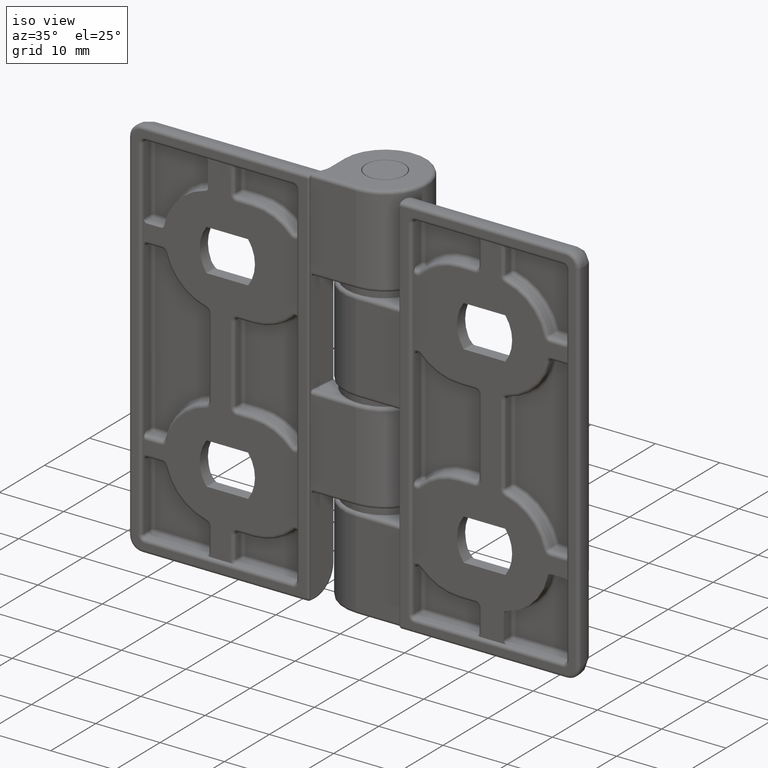
[diagram: clean part render]
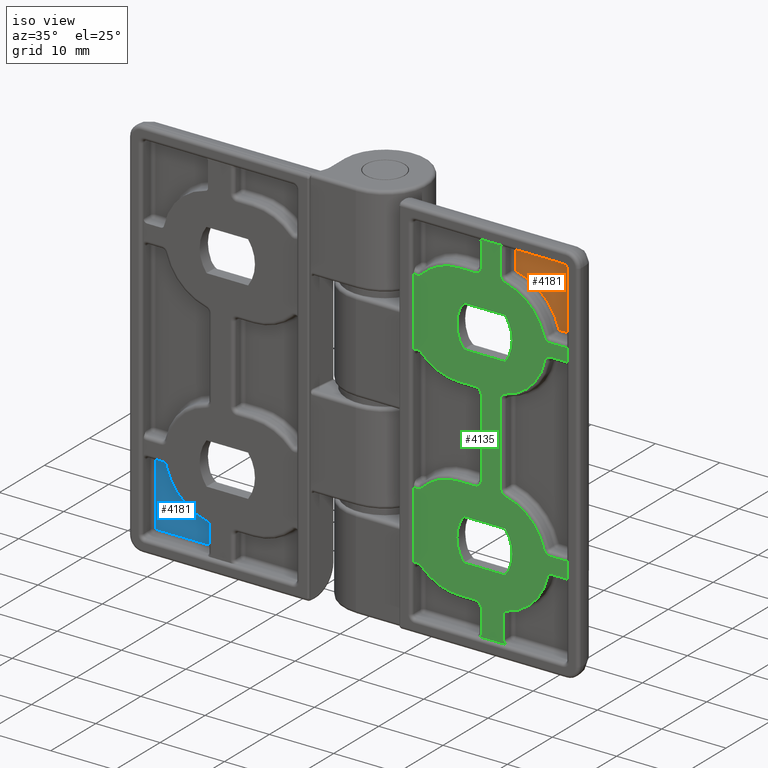
[diagram: same view with three faces highlighted in distinct colors, each labeled with its STEP entity id]
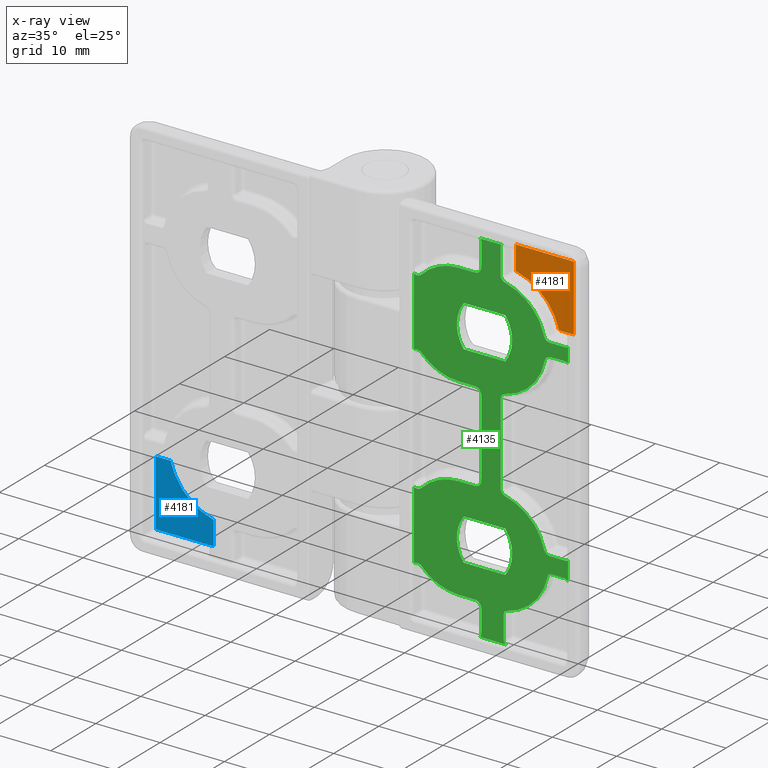
[diagram: x-ray of the same camera — body ghosted, the three highlighted faces saturated]
A machine part, iso view with three faces highlighted in distinct colors.
The next image is the same camera in x-ray (body ghosted, the three faces saturated) — at least one of them is partly hidden behind the body in this view.
Their STEP definitions:

[orange] entity #4181 — the highlighted planar face has unit normal (0, -1, 0).
#180=PLANE('',#4621);
#369=LINE('',#7361,#627);
#370=LINE('',#7363,#628);
#371=LINE('',#7365,#629);
#372=LINE('',#7367,#630);
#627=VECTOR('',#5644,2.28578747103);
#628=VECTOR('',#5645,10.25);
#629=VECTOR('',#5646,9.);
#630=VECTOR('',#5647,3.72503561261);
#951=FACE_OUTER_BOUND('',#1252,.T.);
#1252=EDGE_LOOP('',(#3269,#3270,#3271,#3272,#3273));
#1596=CIRCLE('',#4622,9.);
#2014=VERTEX_POINT('',#7359);
#2015=VERTEX_POINT('',#7360);
#2016=VERTEX_POINT('',#7362);
#2017=VERTEX_POINT('',#7364);
#2018=VERTEX_POINT('',#7366);
#2458=EDGE_CURVE('',#2014,#2015,#369,.T.);
#2459=EDGE_CURVE('',#2016,#2014,#370,.T.);
#2460=EDGE_CURVE('',#2017,#2016,#371,.T.);
#2461=EDGE_CURVE('',#2018,#2017,#372,.T.);
#2462=EDGE_CURVE('',#2015,#2018,#1596,.T.);
#3269=ORIENTED_EDGE('',*,*,#2458,.F.);
#3270=ORIENTED_EDGE('',*,*,#2459,.F.);
#3271=ORIENTED_EDGE('',*,*,#2460,.F.);
#3272=ORIENTED_EDGE('',*,*,#2461,.F.);
#3273=ORIENTED_EDGE('',*,*,#2462,.F.);
#4181=ADVANCED_FACE('',(#951),#180,.T.);
#4621=AXIS2_PLACEMENT_3D('',#7358,#5642,#5643);
#4622=AXIS2_PLACEMENT_3D('',#7368,#5648,#5649);
#5642=DIRECTION('center_axis',(0.,0.,1.));
#5643=DIRECTION('ref_axis',(1.,0.,0.));
#5644=DIRECTION('',(-1.,0.,0.));
#5645=DIRECTION('',(0.,-1.,0.));
#5646=DIRECTION('',(1.,0.,0.));
#5647=DIRECTION('',(0.,1.,0.));
#5648=DIRECTION('center_axis',(0.,0.,1.));
#5649=DIRECTION('ref_axis',(0.968245836551857,0.249999999999989,0.));
#7358=CARTESIAN_POINT('Origin',(0.,-30.,4.5));
#7359=CARTESIAN_POINT('',(32.5,17.25,4.5));
#7360=CARTESIAN_POINT('',(30.21421252897,17.25,4.5));
#7361=CARTESIAN_POINT('',(32.5,17.25,4.5));
#7362=CARTESIAN_POINT('',(32.5,27.5,4.5));
#7363=CARTESIAN_POINT('',(32.5,27.5,4.5));
#7364=CARTESIAN_POINT('',(23.5,27.5,4.5));
#7365=CARTESIAN_POINT('',(23.5,27.5,4.5));
#7366=CARTESIAN_POINT('',(23.5,23.77496438739,4.5));
#7367=CARTESIAN_POINT('',(23.5,23.77496438739,4.5));
#7368=CARTESIAN_POINT('Origin',(21.5,15.,4.5));

[blue] entity #4181 — the highlighted planar face has unit normal (-0, -1, 0).
#180=PLANE('',#4621);
#369=LINE('',#7361,#627);
#370=LINE('',#7363,#628);
#371=LINE('',#7365,#629);
#372=LINE('',#7367,#630);
#627=VECTOR('',#5644,2.28578747103);
#628=VECTOR('',#5645,10.25);
#629=VECTOR('',#5646,9.);
#630=VECTOR('',#5647,3.72503561261);
#951=FACE_OUTER_BOUND('',#1252,.T.);
#1252=EDGE_LOOP('',(#3269,#3270,#3271,#3272,#3273));
#1596=CIRCLE('',#4622,9.);
#2014=VERTEX_POINT('',#7359);
#2015=VERTEX_POINT('',#7360);
#2016=VERTEX_POINT('',#7362);
#2017=VERTEX_POINT('',#7364);
#2018=VERTEX_POINT('',#7366);
#2458=EDGE_CURVE('',#2014,#2015,#369,.T.);
#2459=EDGE_CURVE('',#2016,#2014,#370,.T.);
#2460=EDGE_CURVE('',#2017,#2016,#371,.T.);
#2461=EDGE_CURVE('',#2018,#2017,#372,.T.);
#2462=EDGE_CURVE('',#2015,#2018,#1596,.T.);
#3269=ORIENTED_EDGE('',*,*,#2458,.F.);
#3270=ORIENTED_EDGE('',*,*,#2459,.F.);
#3271=ORIENTED_EDGE('',*,*,#2460,.F.);
#3272=ORIENTED_EDGE('',*,*,#2461,.F.);
#3273=ORIENTED_EDGE('',*,*,#2462,.F.);
#4181=ADVANCED_FACE('',(#951),#180,.T.);
#4621=AXIS2_PLACEMENT_3D('',#7358,#5642,#5643);
#4622=AXIS2_PLACEMENT_3D('',#7368,#5648,#5649);
#5642=DIRECTION('center_axis',(0.,0.,1.));
#5643=DIRECTION('ref_axis',(1.,0.,0.));
#5644=DIRECTION('',(-1.,0.,0.));
#5645=DIRECTION('',(0.,-1.,0.));
#5646=DIRECTION('',(1.,0.,0.));
#5647=DIRECTION('',(0.,1.,0.));
#5648=DIRECTION('center_axis',(0.,0.,1.));
#5649=DIRECTION('ref_axis',(0.968245836551857,0.249999999999989,0.));
#7358=CARTESIAN_POINT('Origin',(0.,-30.,4.5));
#7359=CARTESIAN_POINT('',(32.5,17.25,4.5));
#7360=CARTESIAN_POINT('',(30.21421252897,17.25,4.5));
#7361=CARTESIAN_POINT('',(32.5,17.25,4.5));
#7362=CARTESIAN_POINT('',(32.5,27.5,4.5));
#7363=CARTESIAN_POINT('',(32.5,27.5,4.5));
#7364=CARTESIAN_POINT('',(23.5,27.5,4.5));
#7365=CARTESIAN_POINT('',(23.5,27.5,4.5));
#7366=CARTESIAN_POINT('',(23.5,23.77496438739,4.5));
#7367=CARTESIAN_POINT('',(23.5,23.77496438739,4.5));
#7368=CARTESIAN_POINT('Origin',(21.5,15.,4.5));

[green] entity #4135 — the highlighted planar face has unit normal (0, -1, 0).
#140=FACE_BOUND('',#1204,.T.);
#141=FACE_BOUND('',#1205,.T.);
#164=PLANE('',#4489);
#253=LINE('',#6761,#511);
#254=LINE('',#6763,#512);
#261=LINE('',#6845,#519);
#262=LINE('',#6847,#520);
#277=LINE('',#6958,#535);
#278=LINE('',#6962,#536);
#279=LINE('',#6966,#537);
#280=LINE('',#6970,#538);
#281=LINE('',#6978,#539);
#282=LINE('',#6982,#540);
#283=LINE('',#6986,#541);
#284=LINE('',#6994,#542);
#285=LINE('',#7002,#543);
#286=LINE('',#7006,#544);
#287=LINE('',#7010,#545);
#288=LINE('',#7018,#546);
#289=LINE('',#7022,#547);
#290=LINE('',#7026,#548);
#291=LINE('',#7030,#549);
#292=LINE('',#7036,#550);
#293=LINE('',#7042,#551);
#294=LINE('',#7046,#552);
#295=LINE('',#7050,#553);
#296=LINE('',#7055,#554);
#511=VECTOR('',#5184,6.47411967464942);
#512=VECTOR('',#5187,6.47411967464942);
#519=VECTOR('',#5216,6.47411967464942);
#520=VECTOR('',#5219,6.47411967464942);
#535=VECTOR('',#5292,2.50000000084446);
#536=VECTOR('',#5295,3.50000000129187);
#537=VECTOR('',#5298,4.13397459622);
#538=VECTOR('',#5301,3.72503561261);
#539=VECTOR('',#5308,2.1717782085);
#540=VECTOR('',#5311,3.13397459688);
#541=VECTOR('',#5314,2.28578747203446);
#542=VECTOR('',#5321,12.4500712263508);
#543=VECTOR('',#5328,2.17177820982146);
#544=VECTOR('',#5331,2.2679491927);
#545=VECTOR('',#5334,2.28578747203446);
#546=VECTOR('',#5341,3.72503561379666);
#547=VECTOR('',#5344,3.26794919244);
#548=VECTOR('',#5347,3.50000000116887);
#549=VECTOR('',#5350,2.5);
#550=VECTOR('',#5355,10.71784879042);
#551=VECTOR('',#5360,2.50000000084446);
#552=VECTOR('',#5363,12.0000000011707);
#553=VECTOR('',#5366,2.5);
#554=VECTOR('',#5371,10.71784879042);
#905=FACE_OUTER_BOUND('',#1203,.T.);
#1203=EDGE_LOOP('',(#3002,#3003,#3004,#3005,#3006,#3007,#3008,#3009,#3010,
#3011,#3012,#3013,#3014,#3015,#3016,#3017,#3018,#3019,#3020,#3021,#3022,
#3023,#3024,#3025,#3026,#3027,#3028,#3029,#3030,#3031,#3032,#3033,#3034,
#3035,#3036,#3037,#3038,#3039,#3040,#3041,#3042,#3043,#3044,#3045,#3046,
#3047,#3048,#3049,#3050,#3051,#3052,#3053));
#1204=EDGE_LOOP('',(#3054,#3055,#3056,#3057));
#1205=EDGE_LOOP('',(#3058,#3059,#3060,#3061));
#1486=CIRCLE('',#4442,5.5);
#1488=CIRCLE('',#4446,5.5);
#1490=CIRCLE('',#4454,5.5);
#1492=CIRCLE('',#4459,5.5);
#1510=CIRCLE('',#4490,1.);
#1511=CIRCLE('',#4491,8.);
#1512=CIRCLE('',#4492,1.);
#1513=CIRCLE('',#4493,1.);
#1514=CIRCLE('',#4494,0.5);
#1515=CIRCLE('',#4495,0.5);
#1516=CIRCLE('',#4496,8.5);
#1517=CIRCLE('',#4497,0.5);
#1518=CIRCLE('',#4498,0.5);
#1519=CIRCLE('',#4499,1.);
#1520=CIRCLE('',#4500,1.);
#1521=CIRCLE('',#4501,8.);
#1522=CIRCLE('',#4502,1.);
#1523=CIRCLE('',#4503,1.);
#1524=CIRCLE('',#4504,8.);
#1525=CIRCLE('',#4505,1.);
#1526=CIRCLE('',#4506,1.);
#1527=CIRCLE('',#4507,1.);
#1528=CIRCLE('',#4508,1.);
#1529=CIRCLE('',#4509,8.);
#1530=CIRCLE('',#4510,1.);
#1531=CIRCLE('',#4511,1.);
#1532=CIRCLE('',#4512,1.);
#1533=CIRCLE('',#4513,1.);
#1534=CIRCLE('',#4514,8.);
#1535=CIRCLE('',#4515,1.);
#1536=CIRCLE('',#4516,1.);
#1537=CIRCLE('',#4517,8.);
#1538=CIRCLE('',#4518,1.);
#1539=CIRCLE('',#4519,1.);
#1540=CIRCLE('',#4520,8.);
#1541=CIRCLE('',#4521,1.);
#1832=VERTEX_POINT('',#6709);
#1833=VERTEX_POINT('',#6711);
#1836=VERTEX_POINT('',#6751);
#1837=VERTEX_POINT('',#6753);
#1840=VERTEX_POINT('',#6797);
#1841=VERTEX_POINT('',#6799);
#1844=VERTEX_POINT('',#6837);
#1845=VERTEX_POINT('',#6839);
#1873=VERTEX_POINT('',#6952);
#1874=VERTEX_POINT('',#6953);
#1875=VERTEX_POINT('',#6955);
#1876=VERTEX_POINT('',#6957);
#1877=VERTEX_POINT('',#6959);
#1878=VERTEX_POINT('',#6961);
#1879=VERTEX_POINT('',#6963);
#1880=VERTEX_POINT('',#6965);
#1881=VERTEX_POINT('',#6967);
#1882=VERTEX_POINT('',#6969);
#1883=VERTEX_POINT('',#6971);
#1884=VERTEX_POINT('',#6973);
#1885=VERTEX_POINT('',#6975);
#1886=VERTEX_POINT('',#6977);
#1887=VERTEX_POINT('',#6979);
#1888=VERTEX_POINT('',#6981);
#1889=VERTEX_POINT('',#6983);
#1890=VERTEX_POINT('',#6985);
#1891=VERTEX_POINT('',#6987);
#1892=VERTEX_POINT('',#6989);
#1893=VERTEX_POINT('',#6991);
#1894=VERTEX_POINT('',#6993);
#1895=VERTEX_POINT('',#6995);
#1896=VERTEX_POINT('',#6997);
#1897=VERTEX_POINT('',#6999);
#1898=VERTEX_POINT('',#7001);
#1899=VERTEX_POINT('',#7003);
#1900=VERTEX_POINT('',#7005);
#1901=VERTEX_POINT('',#7007);
#1902=VERTEX_POINT('',#7009);
#1903=VERTEX_POINT('',#7011);
#1904=VERTEX_POINT('',#7013);
#1905=VERTEX_POINT('',#7015);
#1906=VERTEX_POINT('',#7017);
#1907=VERTEX_POINT('',#7019);
#1908=VERTEX_POINT('',#7021);
#1909=VERTEX_POINT('',#7023);
#1910=VERTEX_POINT('',#7025);
#1911=VERTEX_POINT('',#7027);
#1912=VERTEX_POINT('',#7029);
#1913=VERTEX_POINT('',#7031);
#1914=VERTEX_POINT('',#7033);
#1915=VERTEX_POINT('',#7035);
#1916=VERTEX_POINT('',#7037);
#1917=VERTEX_POINT('',#7039);
#1918=VERTEX_POINT('',#7041);
#1919=VERTEX_POINT('',#7043);
#1920=VERTEX_POINT('',#7045);
#1921=VERTEX_POINT('',#7047);
#1922=VERTEX_POINT('',#7049);
#1923=VERTEX_POINT('',#7051);
#1924=VERTEX_POINT('',#7053);
#2213=EDGE_CURVE('',#1833,#1832,#1486,.T.);
#2219=EDGE_CURVE('',#1837,#1836,#1488,.T.);
#2223=EDGE_CURVE('',#1832,#1837,#253,.T.);
#2224=EDGE_CURVE('',#1836,#1833,#254,.T.);
#2229=EDGE_CURVE('',#1841,#1840,#1490,.T.);
#2236=EDGE_CURVE('',#1845,#1844,#1492,.T.);
#2239=EDGE_CURVE('',#1844,#1841,#261,.T.);
#2240=EDGE_CURVE('',#1840,#1845,#262,.T.);
#2273=EDGE_CURVE('',#1873,#1874,#1510,.T.);
#2274=EDGE_CURVE('',#1875,#1873,#1511,.T.);
#2275=EDGE_CURVE('',#1876,#1875,#277,.T.);
#2276=EDGE_CURVE('',#1877,#1876,#1512,.T.);
#2277=EDGE_CURVE('',#1878,#1877,#278,.T.);
#2278=EDGE_CURVE('',#1879,#1878,#1513,.T.);
#2279=EDGE_CURVE('',#1880,#1879,#279,.T.);
#2280=EDGE_CURVE('',#1880,#1881,#1514,.T.);
#2281=EDGE_CURVE('',#1881,#1882,#280,.T.);
#2282=EDGE_CURVE('',#1882,#1883,#1515,.T.);
#2283=EDGE_CURVE('',#1883,#1884,#1516,.T.);
#2284=EDGE_CURVE('',#1884,#1885,#1517,.T.);
#2285=EDGE_CURVE('',#1885,#1886,#281,.T.);
#2286=EDGE_CURVE('',#1886,#1887,#1518,.T.);
#2287=EDGE_CURVE('',#1888,#1887,#282,.T.);
#2288=EDGE_CURVE('',#1889,#1888,#1519,.T.);
#2289=EDGE_CURVE('',#1890,#1889,#283,.T.);
#2290=EDGE_CURVE('',#1891,#1890,#1520,.T.);
#2291=EDGE_CURVE('',#1892,#1891,#1521,.T.);
#2292=EDGE_CURVE('',#1893,#1892,#1522,.T.);
#2293=EDGE_CURVE('',#1894,#1893,#284,.T.);
#2294=EDGE_CURVE('',#1895,#1894,#1523,.T.);
#2295=EDGE_CURVE('',#1896,#1895,#1524,.T.);
#2296=EDGE_CURVE('',#1897,#1896,#1525,.T.);
#2297=EDGE_CURVE('',#1898,#1897,#285,.T.);
#2298=EDGE_CURVE('',#1899,#1898,#1526,.T.);
#2299=EDGE_CURVE('',#1900,#1899,#286,.T.);
#2300=EDGE_CURVE('',#1901,#1900,#1527,.T.);
#2301=EDGE_CURVE('',#1902,#1901,#287,.T.);
#2302=EDGE_CURVE('',#1903,#1902,#1528,.T.);
#2303=EDGE_CURVE('',#1904,#1903,#1529,.T.);
#2304=EDGE_CURVE('',#1905,#1904,#1530,.T.);
#2305=EDGE_CURVE('',#1906,#1905,#288,.T.);
#2306=EDGE_CURVE('',#1907,#1906,#1531,.T.);
#2307=EDGE_CURVE('',#1908,#1907,#289,.T.);
#2308=EDGE_CURVE('',#1909,#1908,#1532,.T.);
#2309=EDGE_CURVE('',#1910,#1909,#290,.T.);
#2310=EDGE_CURVE('',#1911,#1910,#1533,.T.);
#2311=EDGE_CURVE('',#1912,#1911,#291,.T.);
#2312=EDGE_CURVE('',#1913,#1912,#1534,.T.);
#2313=EDGE_CURVE('',#1914,#1913,#1535,.T.);
#2314=EDGE_CURVE('',#1915,#1914,#292,.T.);
#2315=EDGE_CURVE('',#1916,#1915,#1536,.T.);
#2316=EDGE_CURVE('',#1917,#1916,#1537,.T.);
#2317=EDGE_CURVE('',#1918,#1917,#293,.T.);
#2318=EDGE_CURVE('',#1919,#1918,#1538,.T.);
#2319=EDGE_CURVE('',#1920,#1919,#294,.T.);
#2320=EDGE_CURVE('',#1921,#1920,#1539,.T.);
#2321=EDGE_CURVE('',#1922,#1921,#295,.T.);
#2322=EDGE_CURVE('',#1923,#1922,#1540,.T.);
#2323=EDGE_CURVE('',#1924,#1923,#1541,.T.);
#2324=EDGE_CURVE('',#1874,#1924,#296,.T.);
#3002=ORIENTED_EDGE('',*,*,#2273,.F.);
#3003=ORIENTED_EDGE('',*,*,#2274,.F.);
#3004=ORIENTED_EDGE('',*,*,#2275,.F.);
#3005=ORIENTED_EDGE('',*,*,#2276,.F.);
#3006=ORIENTED_EDGE('',*,*,#2277,.F.);
#3007=ORIENTED_EDGE('',*,*,#2278,.F.);
#3008=ORIENTED_EDGE('',*,*,#2279,.F.);
#3009=ORIENTED_EDGE('',*,*,#2280,.T.);
#3010=ORIENTED_EDGE('',*,*,#2281,.T.);
#3011=ORIENTED_EDGE('',*,*,#2282,.T.);
#3012=ORIENTED_EDGE('',*,*,#2283,.T.);
#3013=ORIENTED_EDGE('',*,*,#2284,.T.);
#3014=ORIENTED_EDGE('',*,*,#2285,.T.);
#3015=ORIENTED_EDGE('',*,*,#2286,.T.);
#3016=ORIENTED_EDGE('',*,*,#2287,.F.);
#3017=ORIENTED_EDGE('',*,*,#2288,.F.);
#3018=ORIENTED_EDGE('',*,*,#2289,.F.);
#3019=ORIENTED_EDGE('',*,*,#2290,.F.);
#3020=ORIENTED_EDGE('',*,*,#2291,.F.);
#3021=ORIENTED_EDGE('',*,*,#2292,.F.);
#3022=ORIENTED_EDGE('',*,*,#2293,.F.);
#3023=ORIENTED_EDGE('',*,*,#2294,.F.);
#3024=ORIENTED_EDGE('',*,*,#2295,.F.);
#3025=ORIENTED_EDGE('',*,*,#2296,.F.);
#3026=ORIENTED_EDGE('',*,*,#2297,.F.);
#3027=ORIENTED_EDGE('',*,*,#2298,.F.);
#3028=ORIENTED_EDGE('',*,*,#2299,.F.);
#3029=ORIENTED_EDGE('',*,*,#2300,.F.);
#3030=ORIENTED_EDGE('',*,*,#2301,.F.);
#3031=ORIENTED_EDGE('',*,*,#2302,.F.);
#3032=ORIENTED_EDGE('',*,*,#2303,.F.);
#3033=ORIENTED_EDGE('',*,*,#2304,.F.);
#3034=ORIENTED_EDGE('',*,*,#2305,.F.);
#3035=ORIENTED_EDGE('',*,*,#2306,.F.);
#3036=ORIENTED_EDGE('',*,*,#2307,.F.);
#3037=ORIENTED_EDGE('',*,*,#2308,.F.);
#3038=ORIENTED_EDGE('',*,*,#2309,.F.);
#3039=ORIENTED_EDGE('',*,*,#2310,.F.);
#3040=ORIENTED_EDGE('',*,*,#2311,.F.);
#3041=ORIENTED_EDGE('',*,*,#2312,.F.);
#3042=ORIENTED_EDGE('',*,*,#2313,.F.);
#3043=ORIENTED_EDGE('',*,*,#2314,.F.);
#3044=ORIENTED_EDGE('',*,*,#2315,.F.);
#3045=ORIENTED_EDGE('',*,*,#2316,.F.);
#3046=ORIENTED_EDGE('',*,*,#2317,.F.);
#3047=ORIENTED_EDGE('',*,*,#2318,.F.);
#3048=ORIENTED_EDGE('',*,*,#2319,.F.);
#3049=ORIENTED_EDGE('',*,*,#2320,.F.);
#3050=ORIENTED_EDGE('',*,*,#2321,.F.);
#3051=ORIENTED_EDGE('',*,*,#2322,.F.);
#3052=ORIENTED_EDGE('',*,*,#2323,.F.);
#3053=ORIENTED_EDGE('',*,*,#2324,.F.);
#3054=ORIENTED_EDGE('',*,*,#2224,.T.);
#3055=ORIENTED_EDGE('',*,*,#2213,.T.);
#3056=ORIENTED_EDGE('',*,*,#2223,.T.);
#3057=ORIENTED_EDGE('',*,*,#2219,.T.);
#3058=ORIENTED_EDGE('',*,*,#2239,.T.);
#3059=ORIENTED_EDGE('',*,*,#2229,.T.);
#3060=ORIENTED_EDGE('',*,*,#2240,.T.);
#3061=ORIENTED_EDGE('',*,*,#2236,.T.);
#4135=ADVANCED_FACE('',(#905,#140,#141),#164,.T.);
#4442=AXIS2_PLACEMENT_3D('',#6712,#5163,#5164);
#4446=AXIS2_PLACEMENT_3D('',#6754,#5173,#5174);
#4454=AXIS2_PLACEMENT_3D('',#6800,#5195,#5196);
#4459=AXIS2_PLACEMENT_3D('',#6840,#5208,#5209);
#4489=AXIS2_PLACEMENT_3D('',#6951,#5286,#5287);
#4490=AXIS2_PLACEMENT_3D('',#6954,#5288,#5289);
#4491=AXIS2_PLACEMENT_3D('',#6956,#5290,#5291);
#4492=AXIS2_PLACEMENT_3D('',#6960,#5293,#5294);
#4493=AXIS2_PLACEMENT_3D('',#6964,#5296,#5297);
#4494=AXIS2_PLACEMENT_3D('',#6968,#5299,#5300);
#4495=AXIS2_PLACEMENT_3D('',#6972,#5302,#5303);
#4496=AXIS2_PLACEMENT_3D('',#6974,#5304,#5305);
#4497=AXIS2_PLACEMENT_3D('',#6976,#5306,#5307);
#4498=AXIS2_PLACEMENT_3D('',#6980,#5309,#5310);
#4499=AXIS2_PLACEMENT_3D('',#6984,#5312,#5313);
#4500=AXIS2_PLACEMENT_3D('',#6988,#5315,#5316);
#4501=AXIS2_PLACEMENT_3D('',#6990,#5317,#5318);
#4502=AXIS2_PLACEMENT_3D('',#6992,#5319,#5320);
#4503=AXIS2_PLACEMENT_3D('',#6996,#5322,#5323);
#4504=AXIS2_PLACEMENT_3D('',#6998,#5324,#5325);
#4505=AXIS2_PLACEMENT_3D('',#7000,#5326,#5327);
#4506=AXIS2_PLACEMENT_3D('',#7004,#5329,#5330);
#4507=AXIS2_PLACEMENT_3D('',#7008,#5332,#5333);
#4508=AXIS2_PLACEMENT_3D('',#7012,#5335,#5336);
#4509=AXIS2_PLACEMENT_3D('',#7014,#5337,#5338);
#4510=AXIS2_PLACEMENT_3D('',#7016,#5339,#5340);
#4511=AXIS2_PLACEMENT_3D('',#7020,#5342,#5343);
#4512=AXIS2_PLACEMENT_3D('',#7024,#5345,#5346);
#4513=AXIS2_PLACEMENT_3D('',#7028,#5348,#5349);
#4514=AXIS2_PLACEMENT_3D('',#7032,#5351,#5352);
#4515=AXIS2_PLACEMENT_3D('',#7034,#5353,#5354);
#4516=AXIS2_PLACEMENT_3D('',#7038,#5356,#5357);
#4517=AXIS2_PLACEMENT_3D('',#7040,#5358,#5359);
#4518=AXIS2_PLACEMENT_3D('',#7044,#5361,#5362);
#4519=AXIS2_PLACEMENT_3D('',#7048,#5364,#5365);
#4520=AXIS2_PLACEMENT_3D('',#7052,#5367,#5368);
#4521=AXIS2_PLACEMENT_3D('',#7054,#5369,#5370);
#5163=DIRECTION('center_axis',(0.,0.,-1.));
#5164=DIRECTION('ref_axis',(0.62350647998118,0.781818181818176,0.));
#5173=DIRECTION('center_axis',(0.,0.,-1.));
#5174=DIRECTION('ref_axis',(-0.62350647998118,-0.781818181818176,0.));
#5184=DIRECTION('',(-1.,0.,0.));
#5187=DIRECTION('',(1.,0.,0.));
#5195=DIRECTION('center_axis',(0.,0.,-1.));
#5196=DIRECTION('ref_axis',(0.62350647998118,0.781818181818176,0.));
#5208=DIRECTION('center_axis',(0.,0.,-1.));
#5209=DIRECTION('ref_axis',(-0.62350647998118,-0.781818181818176,0.));
#5216=DIRECTION('',(1.,0.,0.));
#5219=DIRECTION('',(-1.,0.,0.));
#5286=DIRECTION('center_axis',(0.,0.,1.));
#5287=DIRECTION('ref_axis',(1.,0.,0.));
#5288=DIRECTION('center_axis',(0.,0.,1.));
#5289=DIRECTION('ref_axis',(0.722222222222188,0.691661088777188,0.));
#5290=DIRECTION('center_axis',(0.,0.,-1.));
#5291=DIRECTION('ref_axis',(0.,-1.,0.));
#5292=DIRECTION('',(-1.,6.73008315232087E-11,0.));
#5293=DIRECTION('center_axis',(0.,0.,1.));
#5294=DIRECTION('ref_axis',(1.,0.,0.));
#5295=DIRECTION('',(7.84769074143157E-13,1.,0.));
#5296=DIRECTION('center_axis',(0.,0.,1.));
#5297=DIRECTION('ref_axis',(0.866025403784429,-0.500000000000017,0.));
#5298=DIRECTION('',(-1.,-5.29064537675539E-12,0.));
#5299=DIRECTION('center_axis',(0.,0.,-1.));
#5300=DIRECTION('ref_axis',(0.,-1.,0.));
#5301=DIRECTION('',(0.,1.,0.));
#5302=DIRECTION('center_axis',(0.,0.,-1.));
#5303=DIRECTION('ref_axis',(-1.,0.,0.));
#5304=DIRECTION('center_axis',(0.,0.,1.));
#5305=DIRECTION('ref_axis',(0.222222222222194,-0.974996043043576,0.));
#5306=DIRECTION('center_axis',(0.,0.,-1.));
#5307=DIRECTION('ref_axis',(-0.980913532389429,0.194444444444406,0.));
#5308=DIRECTION('',(1.,0.,0.));
#5309=DIRECTION('center_axis',(0.,0.,-1.));
#5310=DIRECTION('ref_axis',(0.,1.,0.));
#5311=DIRECTION('',(-1.38569993115041E-11,-1.,0.));
#5312=DIRECTION('center_axis',(0.,0.,1.));
#5313=DIRECTION('ref_axis',(0.,-1.,0.));
#5314=DIRECTION('',(1.,1.81564084313016E-10,0.));
#5315=DIRECTION('center_axis',(0.,0.,1.));
#5316=DIRECTION('ref_axis',(-0.968245836551827,-0.250000000000107,0.));
#5317=DIRECTION('center_axis',(0.,0.,-1.));
#5318=DIRECTION('ref_axis',(0.222222222222194,0.974996043043576,0.));
#5319=DIRECTION('center_axis',(0.,0.,1.));
#5320=DIRECTION('ref_axis',(-1.,0.,0.));
#5321=DIRECTION('',(4.66904519920549E-11,-1.,0.));
#5322=DIRECTION('center_axis',(0.,0.,1.));
#5323=DIRECTION('ref_axis',(-0.222222222222194,0.974996043043576,0.));
#5324=DIRECTION('center_axis',(0.,0.,-1.));
#5325=DIRECTION('ref_axis',(0.980913532389409,-0.194444444444502,0.));
#5326=DIRECTION('center_axis',(0.,0.,1.));
#5327=DIRECTION('ref_axis',(0.,1.,0.));
#5328=DIRECTION('',(-1.,-3.09043632218836E-10,0.));
#5329=DIRECTION('center_axis',(0.,0.,1.));
#5330=DIRECTION('ref_axis',(0.500000000000017,0.866025403784429,0.));
#5331=DIRECTION('',(-1.14099021006535E-11,-1.,0.));
#5332=DIRECTION('center_axis',(0.,0.,1.));
#5333=DIRECTION('ref_axis',(0.,-1.,0.));
#5334=DIRECTION('',(1.,1.81564084313016E-10,0.));
#5335=DIRECTION('center_axis',(0.,0.,1.));
#5336=DIRECTION('ref_axis',(-0.968245836551857,-0.249999999999989,0.));
#5337=DIRECTION('center_axis',(0.,0.,-1.));
#5338=DIRECTION('ref_axis',(0.222222222222194,0.974996043043576,0.));
#5339=DIRECTION('center_axis',(0.,0.,1.));
#5340=DIRECTION('ref_axis',(-1.,0.,0.));
#5341=DIRECTION('',(2.57163939758886E-10,-1.,0.));
#5342=DIRECTION('center_axis',(0.,0.,1.));
#5343=DIRECTION('ref_axis',(-0.866025403784429,0.500000000000017,0.));
#5344=DIRECTION('',(1.,-3.99523431998142E-13,0.));
#5345=DIRECTION('center_axis',(0.,0.,1.));
#5346=DIRECTION('ref_axis',(1.,0.,0.));
#5347=DIRECTION('',(9.74896353388139E-11,1.,0.));
#5348=DIRECTION('center_axis',(0.,0.,1.));
#5349=DIRECTION('ref_axis',(0.,-1.,0.));
#5350=DIRECTION('',(1.,1.63215219117774E-10,0.));
#5351=DIRECTION('center_axis',(0.,0.,-1.));
#5352=DIRECTION('ref_axis',(-0.722222222222237,0.691661088777136,0.));
#5353=DIRECTION('center_axis',(0.,0.,1.));
#5354=DIRECTION('ref_axis',(-0.500000000000017,-0.866025403784429,0.));
#5355=DIRECTION('',(1.88692927209877E-12,1.,0.));
#5356=DIRECTION('center_axis',(0.,0.,1.));
#5357=DIRECTION('ref_axis',(0.722222222222188,0.691661088777188,0.));
#5358=DIRECTION('center_axis',(0.,0.,-1.));
#5359=DIRECTION('ref_axis',(0.,-1.,0.));
#5360=DIRECTION('',(-1.,6.73008315232087E-11,0.));
#5361=DIRECTION('center_axis',(0.,0.,1.));
#5362=DIRECTION('ref_axis',(1.,0.,0.));
#5363=DIRECTION('',(-4.08591678919695E-11,1.,0.));
#5364=DIRECTION('center_axis',(0.,0.,1.));
#5365=DIRECTION('ref_axis',(0.,-1.,0.));
#5366=DIRECTION('',(1.,1.63218327742243E-10,0.));
#5367=DIRECTION('center_axis',(0.,0.,-1.));
#5368=DIRECTION('ref_axis',(-0.722222222222188,0.691661088777188,0.));
#5369=DIRECTION('center_axis',(0.,0.,1.));
#5370=DIRECTION('ref_axis',(-0.500000000000017,-0.866025403784429,0.));
#5371=DIRECTION('',(1.88610058115801E-12,1.,0.));
#6709=CARTESIAN_POINT('',(23.2370598373247,11.75,6.5));
#6711=CARTESIAN_POINT('',(23.2370598373247,18.25,6.5));
#6712=CARTESIAN_POINT('Origin',(18.8,15.,6.5));
#6751=CARTESIAN_POINT('',(16.7629401626753,18.25,6.5));
#6753=CARTESIAN_POINT('',(16.7629401626753,11.75,6.5));
#6754=CARTESIAN_POINT('Origin',(21.2,15.,6.5));
#6761=CARTESIAN_POINT('',(23.4292856399,11.75,6.5));
#6763=CARTESIAN_POINT('',(16.5707143601,18.25,6.5));
#6797=CARTESIAN_POINT('',(23.2370598373247,-18.25,6.5));
#6799=CARTESIAN_POINT('',(23.2370598373247,-11.75,6.5));
#6800=CARTESIAN_POINT('Origin',(18.8,-15.,6.5));
#6837=CARTESIAN_POINT('',(16.7629401626753,-11.75,6.5));
#6839=CARTESIAN_POINT('',(16.7629401626753,-18.25,6.5));
#6840=CARTESIAN_POINT('Origin',(21.2,-15.,6.5));
#6845=CARTESIAN_POINT('',(16.5707143601,-11.75,6.5));
#6847=CARTESIAN_POINT('',(23.4292856399,-18.25,6.5));
#6951=CARTESIAN_POINT('Origin',(0.,-30.,6.5));
#6952=CARTESIAN_POINT('',(10.22222222222,-20.53328871022,6.5));
#6953=CARTESIAN_POINT('',(9.,-20.35892439521,6.5));
#6954=CARTESIAN_POINT('Origin',(9.5,-21.22494979899,6.5));
#6955=CARTESIAN_POINT('',(16.,-23.,6.5));
#6956=CARTESIAN_POINT('Origin',(16.,-15.,6.5));
#6957=CARTESIAN_POINT('',(18.5000000008445,-23.0000000000944,6.5));
#6958=CARTESIAN_POINT('',(18.5000000019,-23.00000000017,6.5));
#6959=CARTESIAN_POINT('',(19.5,-24.,6.5));
#6960=CARTESIAN_POINT('Origin',(18.5,-24.,6.5));
#6961=CARTESIAN_POINT('',(19.4999999995541,-27.5000000012919,6.5));
#6962=CARTESIAN_POINT('',(19.49999999914,-27.50000000436,6.5));
#6963=CARTESIAN_POINT('',(19.36602540378,-28.,6.5));
#6964=CARTESIAN_POINT('Origin',(18.5,-27.5,6.5));
#6965=CARTESIAN_POINT('',(23.5,-28.,6.5));
#6966=CARTESIAN_POINT('',(23.5,-28.,6.5));
#6967=CARTESIAN_POINT('',(23.,-27.5,6.5));
#6968=CARTESIAN_POINT('Origin',(23.5,-27.5,6.5));
#6969=CARTESIAN_POINT('',(23.,-23.77496438739,6.5));
#6970=CARTESIAN_POINT('',(23.,-27.5,6.5));
#6971=CARTESIAN_POINT('',(23.38888888889,-23.28746636587,6.5));
#6972=CARTESIAN_POINT('Origin',(23.5,-23.77496438739,6.5));
#6973=CARTESIAN_POINT('',(29.83776502531,-16.65277777778,6.5));
#6974=CARTESIAN_POINT('Origin',(21.5,-15.,6.5));
#6975=CARTESIAN_POINT('',(30.3282217915,-16.25,6.5));
#6976=CARTESIAN_POINT('Origin',(30.3282217915,-16.75,6.5));
#6977=CARTESIAN_POINT('',(32.5,-16.25,6.5));
#6978=CARTESIAN_POINT('',(30.3282217915,-16.25,6.5));
#6979=CARTESIAN_POINT('',(33.,-16.75,6.5));
#6980=CARTESIAN_POINT('Origin',(32.5,-16.75,6.5));
#6981=CARTESIAN_POINT('',(33.00000000004,-13.61602540312,6.5));
#6982=CARTESIAN_POINT('',(33.00000000004,-13.61602540312,6.5));
#6983=CARTESIAN_POINT('',(32.5,-13.75,6.5));
#6984=CARTESIAN_POINT('Origin',(32.5,-12.75,6.5));
#6985=CARTESIAN_POINT('',(30.2142125279655,-13.7499999997096,6.5));
#6986=CARTESIAN_POINT('',(30.21421252558,-13.74999999944,6.5));
#6987=CARTESIAN_POINT('',(29.24596669241,-13.,6.5));
#6988=CARTESIAN_POINT('Origin',(30.21421252897,-12.75,6.5));
#6989=CARTESIAN_POINT('',(23.27777777778,-7.200031655651,6.5));
#6990=CARTESIAN_POINT('Origin',(21.5,-15.,6.5));
#6991=CARTESIAN_POINT('',(22.5000000004271,-6.225035612608,6.5));
#6992=CARTESIAN_POINT('Origin',(23.5,-6.225035612608,6.5));
#6993=CARTESIAN_POINT('',(22.500000000363,6.22503561374281,6.5));
#6994=CARTESIAN_POINT('',(22.5000000007,6.225035616438,6.5));
#6995=CARTESIAN_POINT('',(23.27777777778,7.200031655651,6.5));
#6996=CARTESIAN_POINT('Origin',(23.5,6.225035612608,6.5));
#6997=CARTESIAN_POINT('',(29.34730825912,13.44444444444,6.5));
#6998=CARTESIAN_POINT('Origin',(21.5,15.,6.5));
#6999=CARTESIAN_POINT('',(30.3282217915,14.2499999993061,6.5));
#7000=CARTESIAN_POINT('Origin',(30.3282217915,13.25,6.5));
#7001=CARTESIAN_POINT('',(32.5000000013215,14.2499999995385,6.5));
#7002=CARTESIAN_POINT('',(32.50000000446,14.24999999911,6.5));
#7003=CARTESIAN_POINT('',(33.00000000002,14.11602540352,6.5));
#7004=CARTESIAN_POINT('Origin',(32.5,13.25,6.5));
#7005=CARTESIAN_POINT('',(33.,16.38397459622,6.5));
#7006=CARTESIAN_POINT('',(33.00000000004,16.38397459622,6.5));
#7007=CARTESIAN_POINT('',(32.5,16.25,6.5));
#7008=CARTESIAN_POINT('Origin',(32.5,17.25,6.5));
#7009=CARTESIAN_POINT('',(30.2142125279655,16.2500000002904,6.5));
#7010=CARTESIAN_POINT('',(30.21421252558,16.25000000056,6.5));
#7011=CARTESIAN_POINT('',(29.24596669241,17.,6.5));
#7012=CARTESIAN_POINT('Origin',(30.21421252897,17.25,6.5));
#7013=CARTESIAN_POINT('',(23.27777777778,22.79996834435,6.5));
#7014=CARTESIAN_POINT('Origin',(21.5,15.,6.5));
#7015=CARTESIAN_POINT('',(22.500000000426,23.77496438739,6.5));
#7016=CARTESIAN_POINT('Origin',(23.5,23.77496438739,6.5));
#7017=CARTESIAN_POINT('',(22.5000000001778,27.5000000011867,6.5));
#7018=CARTESIAN_POINT('',(22.50000000032,27.50000000267,6.5));
#7019=CARTESIAN_POINT('',(22.63397459622,28.,6.5));
#7020=CARTESIAN_POINT('Origin',(23.5,27.5,6.5));
#7021=CARTESIAN_POINT('',(19.36602540378,28.,6.5));
#7022=CARTESIAN_POINT('',(19.36602540378,28.,6.5));
#7023=CARTESIAN_POINT('',(19.5,27.5,6.5));
#7024=CARTESIAN_POINT('Origin',(18.5,27.5,6.5));
#7025=CARTESIAN_POINT('',(19.4999999997944,23.9999999988311,6.5));
#7026=CARTESIAN_POINT('',(19.49999999963,23.99999999737,6.5));
#7027=CARTESIAN_POINT('',(18.5,23.,6.5));
#7028=CARTESIAN_POINT('Origin',(18.5,24.,6.5));
#7029=CARTESIAN_POINT('',(16.,23.,6.5));
#7030=CARTESIAN_POINT('',(16.,23.,6.5));
#7031=CARTESIAN_POINT('',(10.22222222222,20.53328871022,6.5));
#7032=CARTESIAN_POINT('Origin',(16.,15.,6.5));
#7033=CARTESIAN_POINT('',(9.,20.35892439521,6.5));
#7034=CARTESIAN_POINT('Origin',(9.5,21.22494979899,6.5));
#7035=CARTESIAN_POINT('',(9.,9.64107560479,6.5));
#7036=CARTESIAN_POINT('',(8.999999999978,9.64107560479,6.5));
#7037=CARTESIAN_POINT('',(10.22222222222,9.466711289783,6.5));
#7038=CARTESIAN_POINT('Origin',(9.5,8.775050201006,6.5));
#7039=CARTESIAN_POINT('',(16.,7.,6.5));
#7040=CARTESIAN_POINT('Origin',(16.,15.,6.5));
#7041=CARTESIAN_POINT('',(18.5000000008445,6.99999999990667,6.5));
#7042=CARTESIAN_POINT('',(18.5000000019,6.999999999832,6.5));
#7043=CARTESIAN_POINT('',(19.5,6.,6.5));
#7044=CARTESIAN_POINT('Origin',(18.5,6.,6.5));
#7045=CARTESIAN_POINT('',(19.4999999997944,-6.00000000117067,6.5));
#7046=CARTESIAN_POINT('',(19.49999999963,-6.000000002634,6.5));
#7047=CARTESIAN_POINT('',(18.5,-7.,6.5));
#7048=CARTESIAN_POINT('Origin',(18.5,-6.,6.5));
#7049=CARTESIAN_POINT('',(16.,-7.,6.5));
#7050=CARTESIAN_POINT('',(16.,-7.,6.5));
#7051=CARTESIAN_POINT('',(10.22222222222,-9.466711289783,6.5));
#7052=CARTESIAN_POINT('Origin',(16.,-15.,6.5));
#7053=CARTESIAN_POINT('',(9.,-9.64107560479,6.5));
#7054=CARTESIAN_POINT('Origin',(9.5,-8.775050201006,6.5));
#7055=CARTESIAN_POINT('',(8.999999999978,-20.35892439521,6.5));